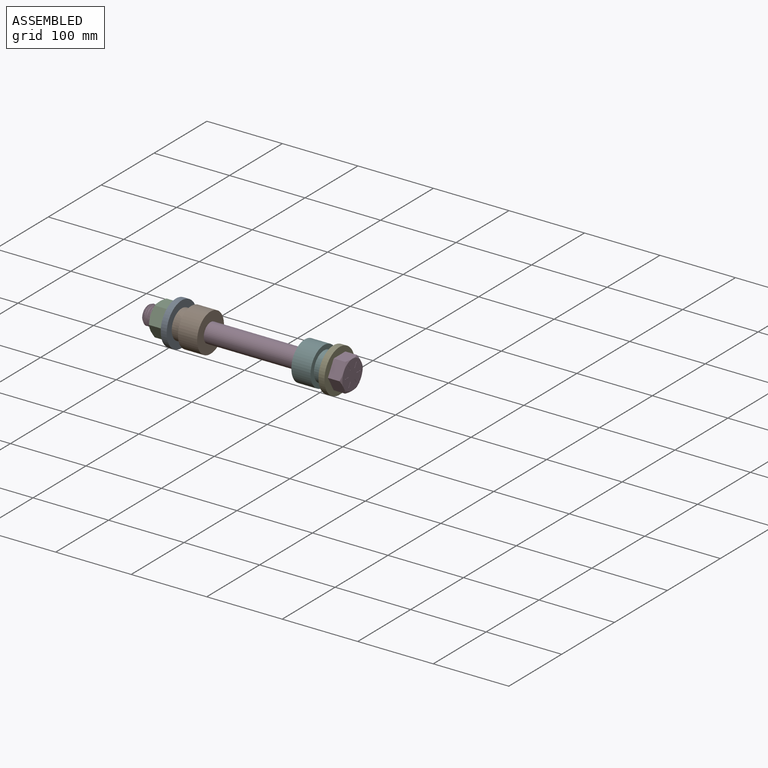
[diagram: assembled view]
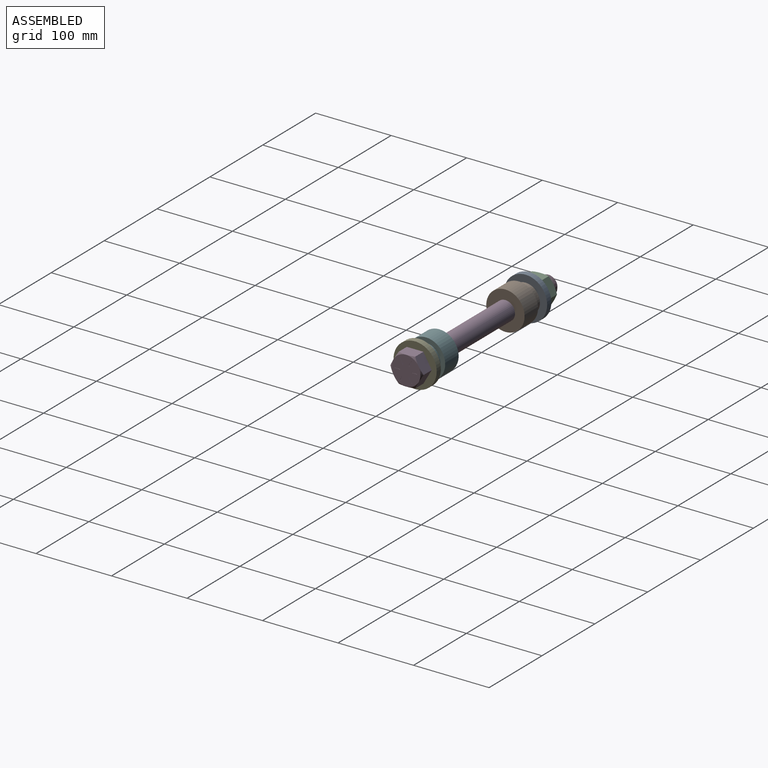
[diagram: assembled view, second angle]
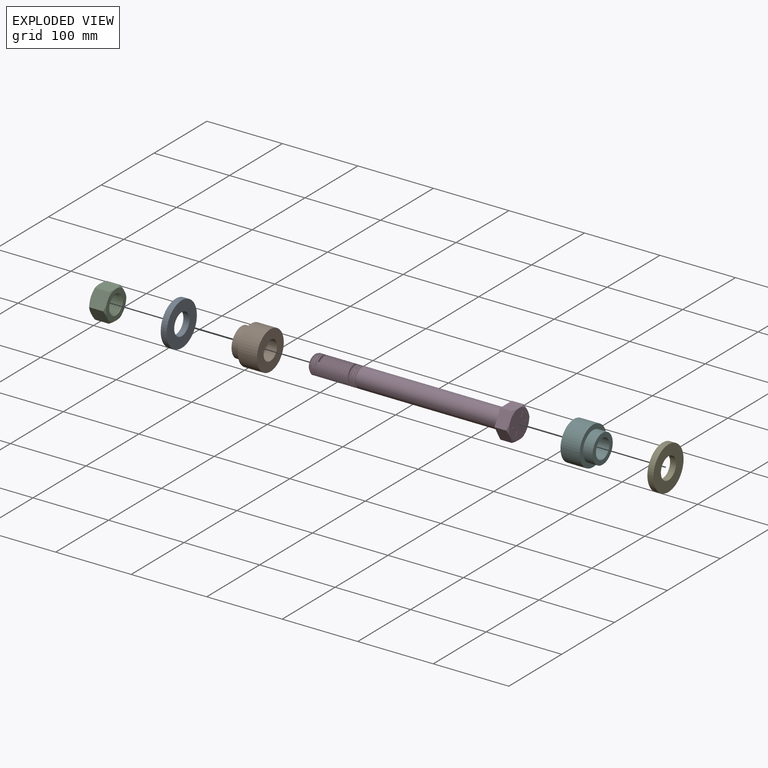
[diagram: exploded view]
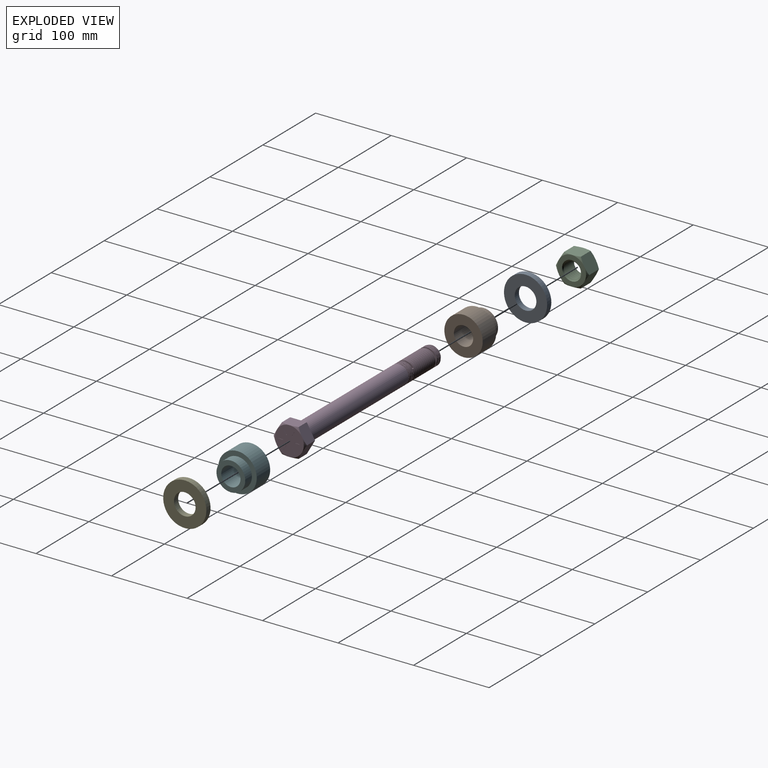
[diagram: exploded view, second angle]
ASSEMBLY  parts=6 mates=5
PART A: 4 faces, bbox 7.9x57.2x57.2 mm
  f0: cylinder r=14.35mm len=28.7mm, axis (-1,0,0), area 715.7mm2, adj f2,f3
  f1: cylinder r=28.57mm len=57.15mm, axis (-1,0,0), area 1425.1mm2, adj f2,f3
  f2: plane 57.15x57.15mm, normal (1,0,0), area 1918.2mm2, adj f0,f1
  f3: plane 57.15x57.15mm, normal (-1,0,0), area 1918.2mm2, adj f0,f1
PART B: 6 faces, bbox 38.1x50.8x50.8 mm
  f0: plane 38.07x38.07mm, normal (-1,0,0), area 626.8mm2, adj f1,f5
  f1: cylinder r=12.76mm len=38.1mm, axis (-1,0,0), area 3055.4mm2, adj f0,f2
  f2: plane 50.8x50.8mm, normal (1,0,0), area 1515mm2, adj f1,f3
  f3: cylinder r=25.4mm len=50.8mm, axis (-1,0,0), area 4053.7mm2, adj f2,f4
  f4: plane 50.8x50.8mm, normal (-1,0,0), area 888.3mm2, adj f3,f5
  f5: cylinder r=19.04mm len=38.07mm, axis (-1,0,0), area 1519.1mm2, adj f0,f4
PART C: 26 faces, bbox 45.8x45.8x26 mm
  f0: cone r=11.91mm half-angle=45deg, axis (0,0,-1), area 109.3mm2, adj f10,f11,f12,f13
  f1: cone r=11.91mm half-angle=45deg, axis (0,0,1), area 109.3mm2, adj f3,f11,f12,f13
  f2: cylinder r=12.7mm len=25.4mm, axis (0,0,-1), area 217.7mm2, adj f3,f10,f11,f13
  f3: plane 38.1x38.1mm, normal (0,0,1), area 633.4mm2, adj f1,f2,f14,f15,f16,f17,f18,f19
  f4: plane 23.63x20.86mm, normal (-0.5,0.87,0), area 454.6mm2, adj f5,f9,f14,f19,f21,f22
  f5: plane 23.81x23.64mm, normal (-1,0,0), area 454.4mm2, adj f4,f6,f18,f19,f22,f23
  f6: plane 23.63x20.86mm, normal (-0.5,-0.87,0), area 454.6mm2, adj f5,f7,f17,f18,f23,f24
  f7: plane 23.63x20.86mm, normal (0.5,-0.87,0), area 454.5mm2, adj f6,f8,f16,f17,f24,f25
  f8: plane 23.81x23.64mm, normal (1,0,0), area 454.5mm2, adj f7,f9,f15,f16,f20,f25
  f9: plane 23.63x20.86mm, normal (0.5,0.87,0), area 454.5mm2, adj f4,f8,f14,f15,f20,f21
  f10: plane 38.1x38.1mm, normal (0,0,-1), area 633.4mm2, adj f0,f2,f20,f21,f22,f23,f24,f25
  f11: bspline ~25.4x25.4mm, area 1091mm2, adj f0,f1,f2,f12
  f12: bspline ~21.28x21.28mm, area 147.9mm2, adj f0,f1,f11,f13
  f13: bspline ~25.39x25.39mm, area 1091mm2, adj f0,f1,f2,f12
  f14: cone r=19.05mm half-angle=60deg, axis (0,0,-1), area 35.7mm2, adj f3,f4,f9
  f15: cone r=19.05mm half-angle=60deg, axis (0,0,-1), area 35.7mm2, adj f3,f8,f9
  f16: cone r=19.05mm half-angle=60deg, axis (0,0,-1), area 35.7mm2, adj f3,f7,f8
  f17: cone r=19.05mm half-angle=60deg, axis (0,0,-1), area 35.7mm2, adj f3,f6,f7
  f18: cone r=19.05mm half-angle=60deg, axis (0,0,-1), area 35.7mm2, adj f3,f5,f6
  f19: cone r=19.05mm half-angle=60deg, axis (0,0,-1), area 35.7mm2, adj f3,f4,f5
  f20: cone r=19.05mm half-angle=60deg, axis (0,0,1), area 35.7mm2, adj f8,f9,f10
  f21: cone r=19.05mm half-angle=60deg, axis (0,0,1), area 35.7mm2, adj f4,f9,f10
  f22: cone r=19.05mm half-angle=60deg, axis (0,0,1), area 35.7mm2, adj f4,f5,f10
  f23: cone r=19.05mm half-angle=60deg, axis (0,0,1), area 35.7mm2, adj f5,f6,f10
  f24: cone r=19.05mm half-angle=60deg, axis (0,0,1), area 35.7mm2, adj f6,f7,f10
  f25: cone r=19.05mm half-angle=60deg, axis (0,0,1), area 35.7mm2, adj f7,f8,f10
PART D: 71 faces, bbox 273.8x45.8x45.8 mm
  f0: cylinder r=0.57mm len=1.07mm, axis (-1,0,0), area 0.5mm2, adj f44,f68,f69,f70
  f1: cylinder r=0.57mm len=1.07mm, axis (-1,0,0), area 0.5mm2, adj f44,f64,f65,f66
  f2: cylinder r=0.57mm len=1.07mm, axis (-1,0,0), area 0.5mm2, adj f44,f54,f56,f57
  f3: cylinder r=0.57mm len=1.07mm, axis (-1,0,0), area 0.5mm2, adj f44,f50,f52,f53
  f4: cone r=1000mm half-angle=45deg, axis (-1,0,0), area 109.3mm2, adj f26,f33,f34,f35
  f5: cone r=10.32mm half-angle=45deg, axis (-1,0,0), area 134.2mm2, adj f7,f33,f34,f35,f36
  f6: cylinder r=12.7mm len=25.4mm, axis (1,0,0), area 31.7mm2, adj f7,f8,f34,f35
  f7: cylinder r=12.7mm len=8.98mm, axis (1,0,0), area 2mm2, adj f5,f6,f35
  f8: cylinder r=12.7mm len=25.4mm, axis (1,0,0), area 31.7mm2, adj f6,f9,f34,f35
  f9: cylinder r=12.7mm len=25.4mm, axis (1,0,0), area 31.7mm2, adj f8,f10,f34,f35
  f10: cylinder r=12.7mm len=25.4mm, axis (1,0,0), area 31.7mm2, adj f9,f11,f34,f35
  f11: cylinder r=12.7mm len=25.4mm, axis (1,0,0), area 31.7mm2, adj f10,f12,f34,f35
  f12: cylinder r=12.7mm len=25.4mm, axis (1,0,0), area 31.7mm2, adj f11,f13,f34,f35
  f13: cylinder r=12.7mm len=25.4mm, axis (1,0,0), area 31.7mm2, adj f12,f14,f34,f35
  f14: cylinder r=12.7mm len=25.4mm, axis (1,0,0), area 31.7mm2, adj f13,f15,f34,f35
  f15: cylinder r=12.7mm len=25.4mm, axis (1,0,0), area 31.7mm2, adj f14,f16,f34,f35
  f16: cylinder r=12.7mm len=25.4mm, axis (1,0,0), area 31.7mm2, adj f15,f17,f34,f35
  f17: cylinder r=12.7mm len=25.4mm, axis (1,0,0), area 31.7mm2, adj f16,f18,f34,f35
  f18: cylinder r=12.7mm len=25.4mm, axis (1,0,0), area 31.7mm2, adj f17,f19,f34,f35
  f19: cylinder r=12.7mm len=25.4mm, axis (1,0,0), area 31.7mm2, adj f18,f20,f34,f35
  f20: cylinder r=12.7mm len=25.4mm, axis (1,0,0), area 31.7mm2, adj f19,f21,f34,f35
  f21: cylinder r=12.7mm len=25.4mm, axis (1,0,0), area 31.7mm2, adj f20,f22,f34,f35
  f22: cylinder r=12.7mm len=25.4mm, axis (1,0,0), area 31.7mm2, adj f21,f23,f34,f35
  f23: cylinder r=12.7mm len=25.4mm, axis (1,0,0), area 31.7mm2, adj f22,f24,f34,f35
  f24: cylinder r=12.7mm len=25.4mm, axis (1,0,0), area 31.7mm2, adj f23,f25,f34,f35
  f25: cylinder r=12.7mm len=25.4mm, axis (1,0,0), area 31.7mm2, adj f24,f26,f34,f35
  f26: cylinder r=12.7mm len=191.29mm, axis (1,0,0), area 15207.2mm2, adj f4,f25,f34,f35,f37
  f27: plane 23.81x18.88mm, normal (0,0,1), area 362.5mm2, adj f28,f32,f37,f38,f43
  f28: plane 20.86x18.87mm, normal (0,0.87,0.5), area 362.5mm2, adj f27,f29,f37,f42,f43
  f29: plane 20.86x18.87mm, normal (0,0.87,-0.5), area 362.6mm2, adj f28,f30,f37,f41,f42
  f30: plane 23.81x18.88mm, normal (0,0,-1), area 362.6mm2, adj f29,f31,f37,f40,f41
  f31: plane 20.86x18.87mm, normal (0,-0.87,-0.5), area 362.6mm2, adj f30,f32,f37,f39,f40
  f32: plane 20.86x18.87mm, normal (0,-0.87,0.5), area 362.6mm2, adj f27,f31,f37,f38,f39
  f33: bspline ~61.91x21.26mm, area 510.7mm2, adj f4,f5,f34,f35
  f34: bspline ~63.37x25.4mm, area 3363.3mm2, adj f4,f5,f6,f8,f9,f10,f11,f12
  f35: bspline ~65.56x25.36mm, area 3363.2mm2, adj f4,f5,f6,f7,f8,f9,f10,f11
  f36: plane 20.64x20.64mm, normal (1,0,0), area 334.5mm2, adj f5
  f37: plane 43.99x38.1mm, normal (1,0,0), area 750.4mm2, adj f26,f27,f28,f29,f30,f31,f32
  f38: cone r=19.05mm half-angle=60deg, axis (1,0,0), area 35.7mm2, adj f27,f32,f44
  f39: cone r=19.05mm half-angle=60deg, axis (1,0,0), area 35.7mm2, adj f31,f32,f44
  f40: cone r=19.05mm half-angle=60deg, axis (1,0,0), area 35.7mm2, adj f30,f31,f44
  f41: cone r=19.05mm half-angle=60deg, axis (1,0,0), area 35.7mm2, adj f29,f30,f44
  f42: cone r=19.05mm half-angle=60deg, axis (1,0,0), area 35.7mm2, adj f28,f29,f44
  f43: cone r=19.05mm half-angle=60deg, axis (1,0,0), area 35.7mm2, adj f27,f28,f44
  f44: plane 38.1x38.1mm, normal (-1,0,0), area 1089.5mm2, adj f0,f1,f2,f3,f38,f39,f40,f41
  f45: cylinder r=0.57mm len=1.14mm, axis (-1,0,0), area 0.5mm2, adj f44,f46,f48,f49
  f46: plane 6.48x0.25mm, normal (0,0,-1), area 1.6mm2, adj f44,f45,f47,f49
  f47: cylinder r=0.57mm len=1.14mm, axis (-1,0,0), area 0.5mm2, adj f44,f46,f48,f49
  f48: plane 6.48x0.25mm, normal (0,0,1), area 1.6mm2, adj f44,f45,f47,f49
  f49: plane 7.62x1.14mm, normal (-1,0,0), area 8.4mm2, adj f45,f46,f47,f48
  f50: plane 5.61x3.24mm, normal (0,0.87,-0.5), area 1.6mm2, adj f3,f44,f51,f53
  f51: cylinder r=0.57mm len=1.07mm, axis (-1,0,0), area 0.5mm2, adj f44,f50,f52,f53
  f52: plane 5.61x3.24mm, normal (0,-0.87,0.5), area 1.6mm2, adj f3,f44,f51,f53
  f53: plane 6.75x4.38mm, normal (-1,0,0), area 8.4mm2, adj f3,f50,f51,f52
  f54: plane 5.61x3.24mm, normal (0,0.87,0.5), area 1.6mm2, adj f2,f44,f55,f57
  f55: cylinder r=0.57mm len=1.07mm, axis (-1,0,0), area 0.5mm2, adj f44,f54,f56,f57
  f56: plane 5.61x3.24mm, normal (0,-0.87,-0.5), area 1.6mm2, adj f2,f44,f55,f57
  f57: plane 6.75x4.38mm, normal (-1,0,0), area 8.4mm2, adj f2,f54,f55,f56
  f58: cylinder r=0.57mm len=1.14mm, axis (-1,0,0), area 0.5mm2, adj f44,f59,f61,f62
  f59: plane 6.48x0.25mm, normal (0,0,1), area 1.6mm2, adj f44,f58,f60,f62
  f60: cylinder r=0.57mm len=1.14mm, axis (-1,0,0), area 0.5mm2, adj f44,f59,f61,f62
  f61: plane 6.48x0.25mm, normal (0,0,-1), area 1.6mm2, adj f44,f58,f60,f62
  f62: plane 7.62x1.14mm, normal (-1,0,0), area 8.4mm2, adj f58,f59,f60,f61
  f63: cylinder r=0.57mm len=1.07mm, axis (-1,0,0), area 0.5mm2, adj f44,f64,f65,f66
  f64: plane 5.61x3.24mm, normal (0,-0.87,0.5), area 1.6mm2, adj f1,f44,f63,f66
  f65: plane 5.61x3.24mm, normal (0,0.87,-0.5), area 1.6mm2, adj f1,f44,f63,f66
  f66: plane 6.75x4.38mm, normal (-1,0,0), area 8.4mm2, adj f1,f63,f64,f65
  f67: cylinder r=0.57mm len=1.07mm, axis (-1,0,0), area 0.5mm2, adj f44,f68,f69,f70
  f68: plane 5.61x3.24mm, normal (0,-0.87,-0.5), area 1.6mm2, adj f0,f44,f67,f70
  f69: plane 5.61x3.24mm, normal (0,0.87,0.5), area 1.6mm2, adj f0,f44,f67,f70
  f70: plane 6.75x4.38mm, normal (-1,0,0), area 8.4mm2, adj f0,f67,f68,f69
PART E: same geometry as A
PART F: same geometry as B
PLACE A t=(-87.07,0,0)mm
PLACE B t=(-64.05,0,0)mm
PLACE C rot(axis=(0.71,0,0.71),180deg) t=(-101.96,0,0)mm
PLACE D rot(axis=(0,1,0),180deg) t=(7.34,0,0)mm fixed
PLACE E t=(121.84,0,0)mm
PLACE F rot(axis=(0,1,0),180deg) t=(98.82,0,0)mm
MATE fastened A.f0 <-> B.f1  axis (1,0,0) through (-83.1,0,0)mm
MATE fastened E.f0 <-> D.f4  axis (1,0,0) through (125.81,0,0)mm
MATE fastened F.f1 <-> E.f0  axis (1,0,0) through (117.87,0,0)mm
MATE slider B.f1 <-> D.f5  axis (1,0,0) through (-45,0,0)mm
MATE fastened C.f1 <-> A.f0  axis (1,0,0) through (-91.04,0,0)mm
